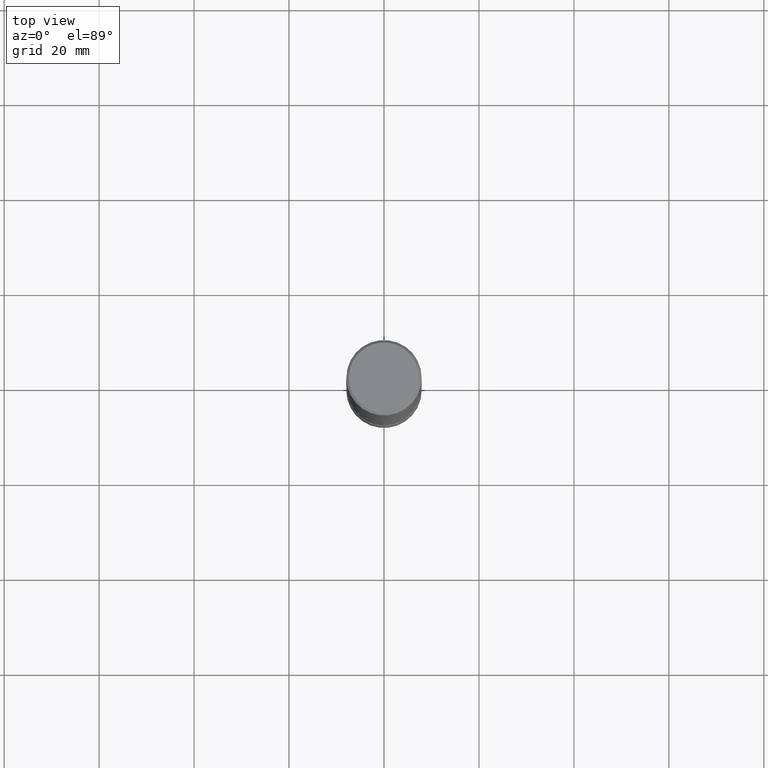
[diagram: clean part render]
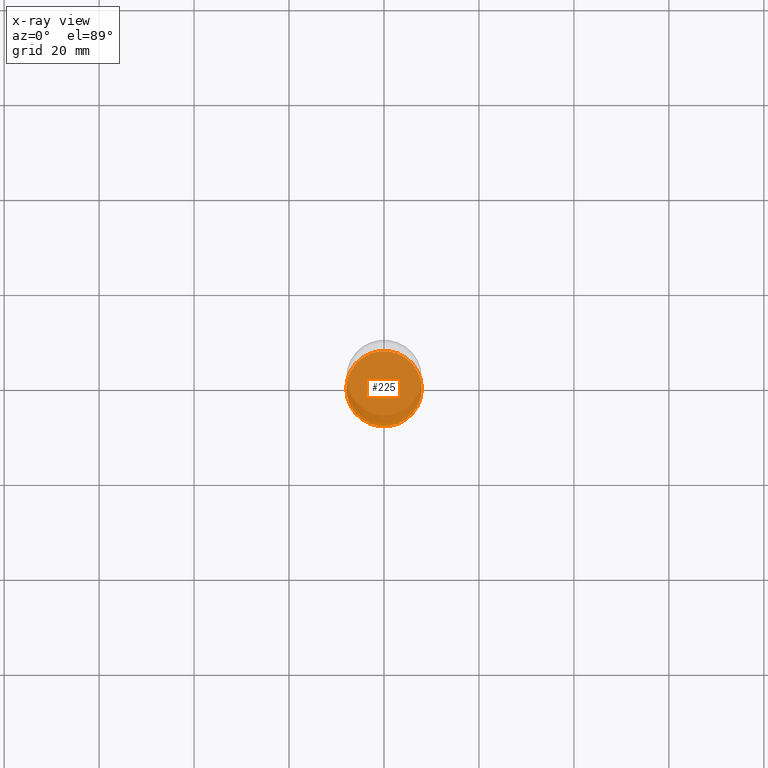
[diagram: x-ray — body ghosted, one internal face saturated and labeled with its STEP entity id]
A machine part, top view, then the same camera in x-ray: the body is ghosted and one INTERNAL B-rep face — a face not visible from any outside direction — is saturated and labeled: STEP entity #225.
In plain terms, the highlighted planar face has unit normal (0, -0, -1).
Its self-contained STEP definition (entity closure, byte-faithful):
#9 = CARTESIAN_POINT ( 'NONE',  ( 1.283871123247196938E-28, -1.833027702892651638E-14, -5.250000000000000888 ) ) ;
#18 = DIRECTION ( 'NONE',  ( -2.445468806185136597E-29, 3.491481338843145583E-15, 1.000000000000000000 ) ) ;
#61 = DIRECTION ( 'NONE',  ( 2.438088387897960049E-29, -3.491481338843145188E-15, -1.000000000000000000 ) ) ;
#75 = DIRECTION ( 'NONE',  ( 1.000000000000000000, -6.982962677686271444E-15, 0.000000000000000000 ) ) ;
#107 = AXIS2_PLACEMENT_3D ( 'NONE', #456, #61, #248 ) ;
#110 = PLANE ( 'NONE',  #107 ) ;
#138 = CIRCLE ( 'NONE', #318, 0.3125000000000001665 ) ;
#198 = VERTEX_POINT ( 'NONE', #218 ) ;
#218 = CARTESIAN_POINT ( 'NONE',  ( -0.3125000000000001665, -1.736676426165973636E-14, -5.250000000000000888 ) ) ;
#225 = ADVANCED_FACE ( 'NONE', ( #496 ), #110, .F. ) ;
#239 = CIRCLE ( 'NONE', #488, 0.3125000000000001665 ) ;
#248 = DIRECTION ( 'NONE',  ( -1.000000000000000000, 6.982962677686265922E-15, -4.876176775795935793E-29 ) ) ;
#270 = EDGE_CURVE ( 'NONE', #198, #459, #239, .T. ) ;
#280 = ORIENTED_EDGE ( 'NONE', *, *, #364, .T. ) ;
#314 = CARTESIAN_POINT ( 'NONE',  ( 0.3125000000000001665, -2.051245286570347946E-14, -5.250000000000000888 ) ) ;
#318 = AXIS2_PLACEMENT_3D ( 'NONE', #471, #18, #410 ) ;
#364 = EDGE_CURVE ( 'NONE', #459, #198, #138, .T. ) ;
#366 = ORIENTED_EDGE ( 'NONE', *, *, #270, .T. ) ;
#409 = DIRECTION ( 'NONE',  ( -2.445468806185136597E-29, 3.491481338843145583E-15, 1.000000000000000000 ) ) ;
#410 = DIRECTION ( 'NONE',  ( 1.000000000000000000, -6.982962677686271444E-15, 0.000000000000000000 ) ) ;
#456 = CARTESIAN_POINT ( 'NONE',  ( 1.283871123247196938E-28, -1.833027702892651638E-14, -5.250000000000000888 ) ) ;
#459 = VERTEX_POINT ( 'NONE', #314 ) ;
#471 = CARTESIAN_POINT ( 'NONE',  ( 1.283871123247196938E-28, -1.833027702892651638E-14, -5.250000000000000888 ) ) ;
#487 = EDGE_LOOP ( 'NONE', ( #280, #366 ) ) ;
#488 = AXIS2_PLACEMENT_3D ( 'NONE', #9, #409, #75 ) ;
#496 = FACE_OUTER_BOUND ( 'NONE', #487, .T. ) ;